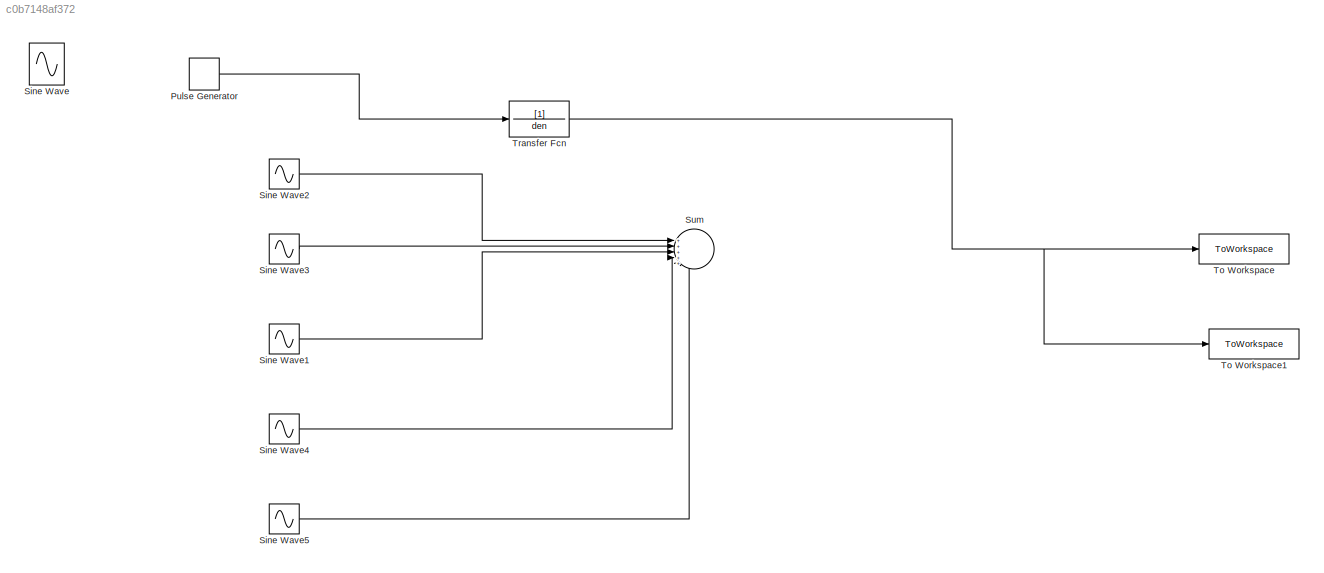
MODEL slx_c0b7148af372
KIND model
CONFIG AbsTol = auto
CONFIG EnableMultiTasking = off
CONFIG FixedStep = auto
CONFIG MaxStep = auto
CONFIG MinStep = auto
CONFIG RelTol = 1e-3
CONFIG SampleTimeConstraint = Unconstrained
CONFIG Solver = VariableStepAuto
CONFIG SolverName = VariableStepAuto
CONFIG StartTime = 0.0
CONFIG StopTime = 0.1
BLOCK [DiscretePulseGenerator] Pulse Generator
  Period = 1/Fsin1
  Ports = [0, 1]
  PulseType = Time based
  PulseWidth = 50
BLOCK [Sin] Sine Wave
  Frequency = 2*pi*Fsin1
  Ports = [0, 1]
  SampleTime = 0
BLOCK [Sin] Sine Wave1
  Frequency = 2*pi*Fsin4
  Ports = [0, 1]
  SampleTime = 0
BLOCK [Sin] Sine Wave2
  Frequency = 2*pi*Fsin2
  Ports = [0, 1]
  SampleTime = 0
BLOCK [Sin] Sine Wave3
  Frequency = 2*pi*Fsin3
  Ports = [0, 1]
  SampleTime = 0
BLOCK [Sin] Sine Wave4
  Frequency = 2*pi*Fsin5
  Ports = [0, 1]
  SampleTime = 0
BLOCK [Sin] Sine Wave5
  Frequency = 2*pi*Fsin6
  Ports = [0, 1]
  SampleTime = 0
BLOCK [Sum] Sum
  Inputs = |++++++
  Ports = [6, 1]
BLOCK [ToWorkspace] To Workspace
  FixptAsFi = on
  MaxDataPoints = inf
  Ports = [1]
  SampleTime = Te/100
  SaveFormat = Timeseries
  VariableName = Sinus_continu
BLOCK [ToWorkspace] To Workspace1
  FixptAsFi = on
  MaxDataPoints = inf
  Ports = [1]
  SampleTime = Te
  SaveFormat = Timeseries
  VariableName = Sinus_Echanti
BLOCK [TransferFcn] Transfer Fcn
  Denominator = den
LINE Pulse Generator:1 -> Transfer Fcn:1
LINE Sine Wave1:1 -> Sum:4
LINE Sine Wave2:1 -> Sum:2
LINE Sine Wave3:1 -> Sum:3
LINE Sine Wave4:1 -> Sum:5
LINE Sine Wave5:1 -> Sum:6
NET Transfer Fcn:1 -> To Workspace1:1, To Workspace:1
note: NET lines group one-source signal fan-out (src -> all destinations, sorted); 1:1 wires keep LINE
